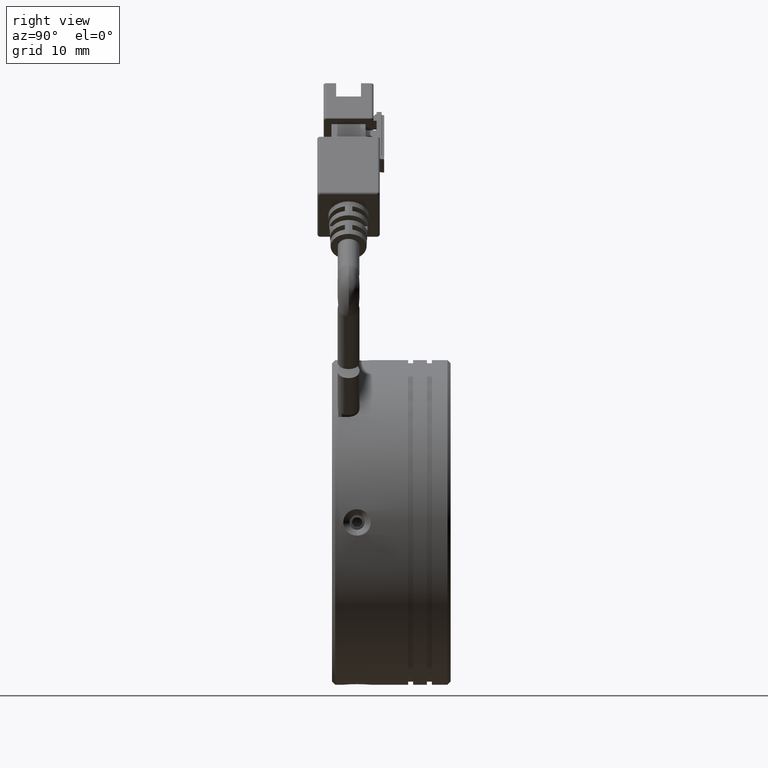
[diagram: clean part render]
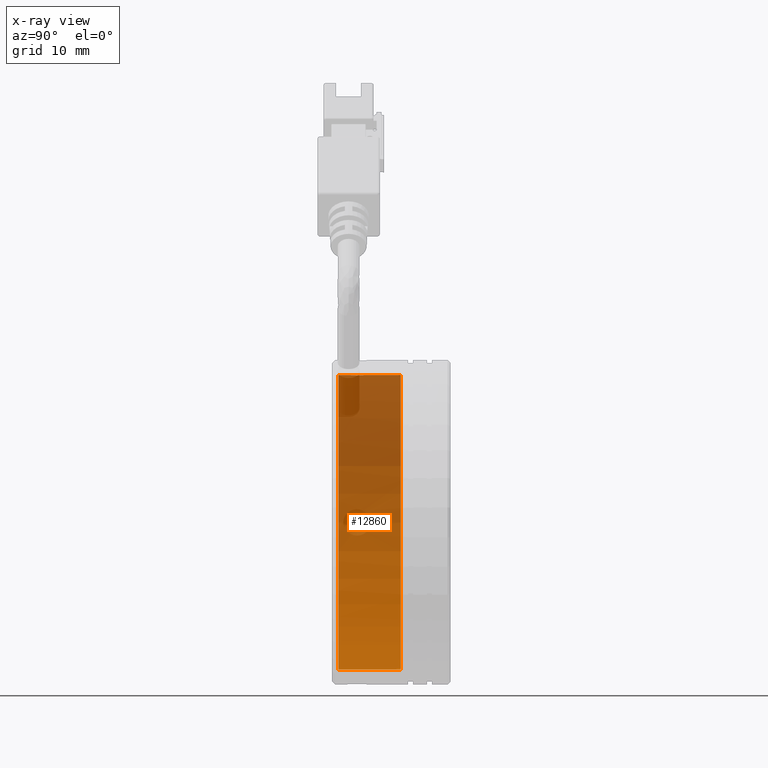
[diagram: x-ray — body ghosted, one internal face saturated and labeled with its STEP entity id]
A machine part, right view, then the same camera in x-ray: the body is ghosted and one INTERNAL B-rep face — a face not visible from any outside direction — is saturated and labeled: STEP entity #12860.
In plain terms, the highlighted cylindrical surface (partial cylindrical patch) has radius 23.6 mm, axis along (-0, -1, -0).
Its self-contained STEP definition (entity closure, byte-faithful):
#134 = B_SPLINE_CURVE_WITH_KNOTS ( 'NONE', 3,
 ( #44229, #17871, #6635, #32945, #10449, #36761, #14236, #40609, #18012, #44399, #21796, #48159, #25533, #3022, #29334, #6797, #33119, #10625 ),
 .UNSPECIFIED., .F., .F.,
 ( 4, 2, 2, 2, 2, 2, 2, 2, 4 ),
 ( 0.003751566785594989700, 0.004220512956037755100, 0.004689459126480519600, 0.005158405296923285000, 0.005627351467366049600, 0.006096297637808815000, 0.006565243808251580400, 0.007034189978694345800, 0.007503136149137110300 ),
 .UNSPECIFIED. ) ;
#205 = CARTESIAN_POINT ( 'NONE',  ( -2.043236476745188500, -2.019923829761832000, -23.56947178024998400 ) ) ;
#226 = FACE_BOUND ( 'NONE', #2645, .T. ) ;
#248 = ORIENTED_EDGE ( 'NONE', *, *, #10613, .F. ) ;
#305 = CARTESIAN_POINT ( 'NONE',  ( -0.8432364767453736100, 4.980076170238170600, 23.59999999999999800 ) ) ;
#412 = CARTESIAN_POINT ( 'NONE',  ( -1.802654267484141300, -2.757483976093340500, -23.58074984862322100 ) ) ;
#481 = CARTESIAN_POINT ( 'NONE',  ( -0.8432364767453765000, -21.81214605198405500, 0.0000000000000000000 ) ) ;
#1692 = CARTESIAN_POINT ( 'NONE',  ( -1.580796743012846700, -1.060506129409402500, -23.58873180317176800 ) ) ;
#1912 = CARTESIAN_POINT ( 'NONE',  ( -1.581474895547319700, -2.978819811423958800, 23.58871022242495400 ) ) ;
#2296 = VERTEX_POINT ( 'NONE', #10962 ) ;
#2645 = EDGE_LOOP ( 'NONE', ( #9018, #28106 ) ) ;
#3022 = CARTESIAN_POINT ( 'NONE',  ( -24.42396984322875400, -2.757145182925909000, 0.9599956775297957500 ) ) ;
#3211 = CARTESIAN_POINT ( 'NONE',  ( -24.44160815473927800, -0.8508460649370627200, -0.3130052400596656800 ) ) ;
#4217 = CARTESIAN_POINT ( 'NONE',  ( -1.447747979166769600, -3.068240703766708300, -23.59269773816366100 ) ) ;
#5164 = VERTEX_POINT ( 'NONE', #305 ) ;
#5406 = B_SPLINE_CURVE_WITH_KNOTS ( 'NONE', 3,
 ( #6664, #48190, #36949, #14422, #40815, #18193, #44577, #21982, #48354, #25715, #3211, #29531, #6993, #33306, #10811, #37126, #14577, #40972 ),
 .UNSPECIFIED., .F., .F.,
 ( 4, 2, 2, 2, 2, 2, 2, 2, 4 ),
 ( 0.0000000000000000000, 0.0004689458481993737100, 0.0009378916963987474200, 0.001406837544598121100, 0.001875783392797494800, 0.002344729240996868600, 0.002813675089196242300, 0.003282620937395616000, 0.003751566785594989700 ),
 .UNSPECIFIED. ) ;
#5474 = CARTESIAN_POINT ( 'NONE',  ( -1.891553398895245100, -1.415412422757610400, -23.57678156965979000 ) ) ;
#5544 = CARTESIAN_POINT ( 'NONE',  ( -24.41270825699535900, -2.019923829761832000, 1.199999999999915400 ) ) ;
#5681 = CARTESIAN_POINT ( 'NONE',  ( -1.159215122928757300, -3.188067622297440900, 23.59832575027449400 ) ) ;
#5729 = B_SPLINE_CURVE_WITH_KNOTS ( 'NONE', 3,
 ( #43076, #20456, #46838, #24197, #1692, #27973, #5474, #31792, #9253, #35583 ),
 .UNSPECIFIED., .F., .F.,
 ( 4, 2, 2, 2, 4 ),
 ( 0.001874892602522634000, 0.002343616699044423200, 0.002812340795566212300, 0.003281064892088001300, 0.003749788988609790400 ),
 .UNSPECIFIED. ) ;
#5946 = VERTEX_POINT ( 'NONE', #45869 ) ;
#6635 = CARTESIAN_POINT ( 'NONE',  ( -24.41435423061420100, -2.334085950753630900, -1.168778408369411000 ) ) ;
#6664 = CARTESIAN_POINT ( 'NONE',  ( -24.41270825699535900, -2.019923829761832000, 1.199999999999915400 ) ) ;
#6797 = CARTESIAN_POINT ( 'NONE',  ( -24.41435779037914600, -2.334381946304344300, 1.168710811287322100 ) ) ;
#6993 = CARTESIAN_POINT ( 'NONE',  ( -24.43202870784420000, -1.058868085110809700, -0.7358388954863058800 ) ) ;
#7091 = EDGE_CURVE ( 'NONE', #25799, #21191, #16123, .T. ) ;
#7985 = CARTESIAN_POINT ( 'NONE',  ( -1.001730018525380600, -3.219923829761801100, -23.60000000000000500 ) ) ;
#8094 = CARTESIAN_POINT ( 'NONE',  ( -0.8432364767453765000, -21.81214605198405500, -23.59999999999999800 ) ) ;
#8322 = VECTOR ( 'NONE', #24405, 1000.000000000000000 ) ;
#9018 = ORIENTED_EDGE ( 'NONE', *, *, #13807, .T. ) ;
#9253 = CARTESIAN_POINT ( 'NONE',  ( -2.043236476745188900, -1.861431566627940000, -23.56947178024998400 ) ) ;
#9480 = CARTESIAN_POINT ( 'NONE',  ( -0.8432364767453736100, -3.219923829761827300, 23.59999999999999800 ) ) ;
#10129 = VERTEX_POINT ( 'NONE', #205 ) ;
#10449 = CARTESIAN_POINT ( 'NONE',  ( -24.42399586663525200, -2.757790312193932900, -0.9591937952086525600 ) ) ;
#10613 = EDGE_CURVE ( 'NONE', #42369, #10129, #5729, .T. ) ;
#10625 = CARTESIAN_POINT ( 'NONE',  ( -24.41270825699535900, -2.019923829761832000, 1.199999999999915400 ) ) ;
#10779 = CARTESIAN_POINT ( 'NONE',  ( -0.8432364767453765000, 4.980076170238170600, 0.0000000000000000000 ) ) ;
#10811 = CARTESIAN_POINT ( 'NONE',  ( -24.42002881385662900, -1.414728958428948900, -1.048097340513789700 ) ) ;
#10962 = CARTESIAN_POINT ( 'NONE',  ( -0.8432364767453736100, -5.019923829761831200, 23.59999999999999800 ) ) ;
#11650 = CARTESIAN_POINT ( 'NONE',  ( -1.447748026053437000, -0.9714562966535530400, 23.59270377888736500 ) ) ;
#11769 = CARTESIAN_POINT ( 'NONE',  ( -0.8432364767453765000, -5.019923829761831200, -23.59999999999999800 ) ) ;
#12237 = EDGE_CURVE ( 'NONE', #21191, #2296, #31145, .T. ) ;
#12315 = ORIENTED_EDGE ( 'NONE', *, *, #7091, .T. ) ;
#12387 = CARTESIAN_POINT ( 'NONE',  ( -0.8432364767453765000, -5.019923829761831200, 0.0000000000000000000 ) ) ;
#12860 = ADVANCED_FACE ( 'NONE', ( #226, #29063 ), #15515, .F. ) ;
#13427 = VERTEX_POINT ( 'NONE', #38614 ) ;
#13807 = EDGE_CURVE ( 'NONE', #37938, #5946, #5406, .T. ) ;
#14236 = CARTESIAN_POINT ( 'NONE',  ( -24.43594803322538700, -3.068548680799536100, -0.6039962606320449200 ) ) ;
#14245 = B_SPLINE_CURVE_WITH_KNOTS ( 'NONE', 3,
 ( #30344, #26562, #34150, #11650, #37954, #15403, #41788, #19181, #45582, #22957 ),
 .UNSPECIFIED., .F., .F.,
 ( 4, 2, 2, 2, 4 ),
 ( -5.421010862427522200E-020, 0.0004687231583219020200, 0.0009374463166438040400, 0.001406169474965706200, 0.001874892633287608300 ),
 .UNSPECIFIED. ) ;
#14422 = CARTESIAN_POINT ( 'NONE',  ( -24.42001837946170200, -1.415150682401247600, 1.048327356491190800 ) ) ;
#14530 = DIRECTION ( 'NONE',  ( 0.0000000000000000000, 0.0000000000000000000, -1.000000000000000000 ) ) ;
#14577 = CARTESIAN_POINT ( 'NONE',  ( -24.41270825699535900, -1.861356051969755600, -1.200000000000004200 ) ) ;
#15403 = CARTESIAN_POINT ( 'NONE',  ( -1.802132564627843200, -1.281685546569973500, 23.58077143608722500 ) ) ;
#15420 = CARTESIAN_POINT ( 'NONE',  ( -2.043236476745188900, -2.178416414254122900, -23.56947178024998000 ) ) ;
#15515 = CYLINDRICAL_SURFACE ( 'NONE', #15790, 23.59999999999999800 ) ;
#15665 = DIRECTION ( 'NONE',  ( -0.0000000000000000000, -1.000000000000000000, -0.0000000000000000000 ) ) ;
#15790 = AXIS2_PLACEMENT_3D ( 'NONE', #481, #26782, #42041 ) ;
#15820 = CIRCLE ( 'NONE', #34843, 23.59999999999999800 ) ;
#16123 = B_SPLINE_CURVE_WITH_KNOTS ( 'NONE', 3,
 ( #39473, #43285, #20673, #47060, #24402, #1912, #28198, #5681, #32001, #9480 ),
 .UNSPECIFIED., .F., .F.,
 ( 4, 2, 2, 2, 4 ),
 ( 0.001874892633287608300, 0.002343616741991071200, 0.002812340850694533900, 0.003281064959397996600, 0.003749789068101459300 ),
 .UNSPECIFIED. ) ;
#16153 = DIRECTION ( 'NONE',  ( 0.0000000000000000000, 0.0000000000000000000, -1.000000000000000000 ) ) ;
#17004 = ORIENTED_EDGE ( 'NONE', *, *, #30586, .F. ) ;
#17152 = ORIENTED_EDGE ( 'NONE', *, *, #38314, .T. ) ;
#17871 = CARTESIAN_POINT ( 'NONE',  ( -24.41270825699535200, -2.178491716515050100, -1.200000000000157400 ) ) ;
#17935 = EDGE_CURVE ( 'NONE', #5946, #37938, #134, .T. ) ;
#18012 = CARTESIAN_POINT ( 'NONE',  ( -24.44323101557521100, -3.219816426723565200, -0.1573503971682221900 ) ) ;
#18193 = CARTESIAN_POINT ( 'NONE',  ( -24.43195985023421500, -1.060703347810118700, 0.7378317895479573600 ) ) ;
#19181 = CARTESIAN_POINT ( 'NONE',  ( -2.011380267493263900, -1.703945199785779300, 23.57114841574021800 ) ) ;
#19864 = EDGE_CURVE ( 'NONE', #2296, #23563, #37928, .T. ) ;
#20456 = CARTESIAN_POINT ( 'NONE',  ( -1.001729055964604800, -0.8199238297618634000, -23.59999999999999100 ) ) ;
#20673 = CARTESIAN_POINT ( 'NONE',  ( -2.012046225754328800, -2.333933601142113000, 23.57111606049467400 ) ) ;
#21139 = CARTESIAN_POINT ( 'NONE',  ( -0.8432364767453736100, -21.81214605198405500, 23.59999999999999800 ) ) ;
#21191 = VERTEX_POINT ( 'NONE', #22831 ) ;
#21422 = EDGE_CURVE ( 'NONE', #33474, #42369, #21921, .T. ) ;
#21796 = CARTESIAN_POINT ( 'NONE',  ( -24.44160815473928500, -3.189001594586605000, 0.3130052400594893800 ) ) ;
#21921 = LINE ( 'NONE', #43287, #8322 ) ;
#21982 = CARTESIAN_POINT ( 'NONE',  ( -24.44157246092626700, -0.8515759734985368600, 0.3152599686546836400 ) ) ;
#22339 = B_SPLINE_CURVE_WITH_KNOTS ( 'NONE', 3,
 ( #34163, #15420, #45601, #22971, #412, #26722, #4217, #30526, #7985, #34319 ),
 .UNSPECIFIED., .F., .F.,
 ( 4, 2, 2, 2, 4 ),
 ( 0.003749788988609790400, 0.004218514035515038400, 0.004687239082420286900, 0.005155964129325536300, 0.005624689176230784700 ),
 .UNSPECIFIED. ) ;
#22831 = CARTESIAN_POINT ( 'NONE',  ( -0.8432364767453736100, -3.219923829761827300, 23.59999999999999800 ) ) ;
#22957 = CARTESIAN_POINT ( 'NONE',  ( -2.043236476745371900, -2.019923829761832000, 23.56947178024997300 ) ) ;
#22971 = CARTESIAN_POINT ( 'NONE',  ( -1.891704058667388600, -2.624435281728529000, -23.57677552797129600 ) ) ;
#23463 = VERTEX_POINT ( 'NONE', #33638 ) ;
#23563 = VERTEX_POINT ( 'NONE', #11769 ) ;
#24197 = CARTESIAN_POINT ( 'NONE',  ( -1.447748026053364200, -0.9714562966536196600, -23.59270377888737300 ) ) ;
#24254 = AXIS2_PLACEMENT_3D ( 'NONE', #12387, #38702, #16153 ) ;
#24402 = CARTESIAN_POINT ( 'NONE',  ( -1.802654267484277400, -2.757483976093404900, 23.58074984862322400 ) ) ;
#24405 = DIRECTION ( 'NONE',  ( -0.0000000000000000000, -1.000000000000000000, -0.0000000000000000000 ) ) ;
#24735 = DIRECTION ( 'NONE',  ( -0.0000000000000000000, -1.000000000000000000, -0.0000000000000000000 ) ) ;
#25533 = CARTESIAN_POINT ( 'NONE',  ( -24.43202870784421100, -2.980979574412863500, 0.7358388954861324600 ) ) ;
#25715 = CARTESIAN_POINT ( 'NONE',  ( -24.44324190933849600, -0.8198169887388664400, -0.1557079376989027000 ) ) ;
#25799 = VERTEX_POINT ( 'NONE', #32809 ) ;
#26257 = ORIENTED_EDGE ( 'NONE', *, *, #19864, .T. ) ;
#26562 = CARTESIAN_POINT ( 'NONE',  ( -1.001729055964617000, -0.8199238297618355300, 23.59999999999999800 ) ) ;
#26722 = CARTESIAN_POINT ( 'NONE',  ( -1.581474895547215800, -2.978819811423894400, -23.58871022242496100 ) ) ;
#26782 = DIRECTION ( 'NONE',  ( -0.0000000000000000000, -1.000000000000000000, -0.0000000000000000000 ) ) ;
#27973 = CARTESIAN_POINT ( 'NONE',  ( -1.802132564627709500, -1.281685546570041200, -23.58077143608723200 ) ) ;
#28106 = ORIENTED_EDGE ( 'NONE', *, *, #17935, .T. ) ;
#28198 = CARTESIAN_POINT ( 'NONE',  ( -1.447747979166847300, -3.068240703766772700, 23.59269773816365400 ) ) ;
#28486 = ORIENTED_EDGE ( 'NONE', *, *, #42726, .F. ) ;
#29063 = FACE_OUTER_BOUND ( 'NONE', #41401, .T. ) ;
#29334 = CARTESIAN_POINT ( 'NONE',  ( -24.42002881385663200, -2.625118701094709000, 1.048097340513627100 ) ) ;
#29531 = CARTESIAN_POINT ( 'NONE',  ( -24.43596405977474000, -0.9709282270553423200, -0.6035920195090254100 ) ) ;
#30344 = CARTESIAN_POINT ( 'NONE',  ( -0.8432364767453736100, -0.8199238297618366400, 23.59999999999999800 ) ) ;
#30526 = CARTESIAN_POINT ( 'NONE',  ( -1.159215122928722200, -3.188067622297395600, -23.59832575027449400 ) ) ;
#30586 = EDGE_CURVE ( 'NONE', #5164, #33474, #15820, .T. ) ;
#30790 = VECTOR ( 'NONE', #15665, 1000.000000000000000 ) ;
#31145 = LINE ( 'NONE', #21139, #34714 ) ;
#31642 = CARTESIAN_POINT ( 'NONE',  ( -0.8432364767453765000, -0.8199238297618384200, -23.59999999999999800 ) ) ;
#31792 = CARTESIAN_POINT ( 'NONE',  ( -2.011380267493088500, -1.703945199785817000, -23.57114841574022500 ) ) ;
#32001 = CARTESIAN_POINT ( 'NONE',  ( -1.001728736124516800, -3.219923829761829100, 23.59999999999999800 ) ) ;
#32497 = DIRECTION ( 'NONE',  ( -0.0000000000000000000, -1.000000000000000000, -0.0000000000000000000 ) ) ;
#32809 = CARTESIAN_POINT ( 'NONE',  ( -2.043236476745371900, -2.019923829761832000, 23.56947178024997300 ) ) ;
#32945 = CARTESIAN_POINT ( 'NONE',  ( -24.42001837946170900, -2.624696977122403100, -1.048327356491362000 ) ) ;
#33119 = CARTESIAN_POINT ( 'NONE',  ( -24.41270825699535900, -2.178491825478006100, 1.199999999999915400 ) ) ;
#33189 = EDGE_CURVE ( 'NONE', #5164, #23463, #47129, .T. ) ;
#33306 = CARTESIAN_POINT ( 'NONE',  ( -24.42396984322875400, -1.282702476597746400, -0.9599956775299515200 ) ) ;
#33474 = VERTEX_POINT ( 'NONE', #41775 ) ;
#33638 = CARTESIAN_POINT ( 'NONE',  ( -0.8432364767453736100, -0.8199238297618366400, 23.59999999999999800 ) ) ;
#34150 = CARTESIAN_POINT ( 'NONE',  ( -1.157246261397724800, -0.8511140777612862300, 23.59835807141496700 ) ) ;
#34163 = CARTESIAN_POINT ( 'NONE',  ( -2.043236476745188500, -2.019923829761832000, -23.56947178024998400 ) ) ;
#34319 = CARTESIAN_POINT ( 'NONE',  ( -0.8432364767453765000, -3.219923829761825600, -23.59999999999999800 ) ) ;
#34385 = ORIENTED_EDGE ( 'NONE', *, *, #33189, .T. ) ;
#34714 = VECTOR ( 'NONE', #24735, 1000.000000000000000 ) ;
#34843 = AXIS2_PLACEMENT_3D ( 'NONE', #10779, #37072, #14530 ) ;
#35583 = CARTESIAN_POINT ( 'NONE',  ( -2.043236476745188500, -2.019923829761832000, -23.56947178024998400 ) ) ;
#36761 = CARTESIAN_POINT ( 'NONE',  ( -24.43195985023421500, -2.979144311713537900, -0.7378317895481320000 ) ) ;
#36949 = CARTESIAN_POINT ( 'NONE',  ( -24.41435423061421200, -1.705761708770036700, 1.168778408369247600 ) ) ;
#37072 = DIRECTION ( 'NONE',  ( -0.0000000000000000000, -1.000000000000000000, -0.0000000000000000000 ) ) ;
#37078 = VECTOR ( 'NONE', #32497, 1000.000000000000000 ) ;
#37126 = CARTESIAN_POINT ( 'NONE',  ( -24.41435779037913900, -1.705465713219329600, -1.168710811287491100 ) ) ;
#37928 = CIRCLE ( 'NONE', #24254, 23.59999999999999800 ) ;
#37938 = VERTEX_POINT ( 'NONE', #5544 ) ;
#37954 = CARTESIAN_POINT ( 'NONE',  ( -1.580796743012942600, -1.060506129409332100, 23.58873180317176500 ) ) ;
#38314 = EDGE_CURVE ( 'NONE', #23463, #25799, #14245, .T. ) ;
#38614 = CARTESIAN_POINT ( 'NONE',  ( -0.8432364767453765000, -3.219923829761825600, -23.59999999999999800 ) ) ;
#38702 = DIRECTION ( 'NONE',  ( -0.0000000000000000000, -1.000000000000000000, -0.0000000000000000000 ) ) ;
#39473 = CARTESIAN_POINT ( 'NONE',  ( -2.043236476745371900, -2.019923829761832000, 23.56947178024997300 ) ) ;
#40609 = CARTESIAN_POINT ( 'NONE',  ( -24.44157246092627400, -3.188271686025125000, -0.3152599686548571100 ) ) ;
#40815 = CARTESIAN_POINT ( 'NONE',  ( -24.42399586663525600, -1.282057347329728800, 0.9591937952084850200 ) ) ;
#40907 = LINE ( 'NONE', #8094, #30790 ) ;
#40972 = CARTESIAN_POINT ( 'NONE',  ( -24.41270825699534800, -2.019923829761832000, -1.200000000000080600 ) ) ;
#41401 = EDGE_LOOP ( 'NONE', ( #17004, #34385, #17152, #12315, #46741, #26257, #28486, #41782, #248, #42987 ) ) ;
#41775 = CARTESIAN_POINT ( 'NONE',  ( -0.8432364767453765000, 4.980076170238170600, -23.59999999999999800 ) ) ;
#41782 = ORIENTED_EDGE ( 'NONE', *, *, #46823, .F. ) ;
#41788 = CARTESIAN_POINT ( 'NONE',  ( -1.891553398895395900, -1.415412422757550600, 23.57678156965978600 ) ) ;
#42041 = DIRECTION ( 'NONE',  ( 0.0000000000000000000, 0.0000000000000000000, -1.000000000000000000 ) ) ;
#42369 = VERTEX_POINT ( 'NONE', #31642 ) ;
#42726 = EDGE_CURVE ( 'NONE', #13427, #23563, #40907, .T. ) ;
#42987 = ORIENTED_EDGE ( 'NONE', *, *, #21422, .F. ) ;
#43076 = CARTESIAN_POINT ( 'NONE',  ( -0.8432364767453765000, -0.8199238297618384200, -23.59999999999999800 ) ) ;
#43285 = CARTESIAN_POINT ( 'NONE',  ( -2.043236476745448300, -2.178416414253563800, 23.56947178024996600 ) ) ;
#43287 = CARTESIAN_POINT ( 'NONE',  ( -0.8432364767453765000, -21.81214605198405500, -23.59999999999999800 ) ) ;
#43804 = CARTESIAN_POINT ( 'NONE',  ( -0.8432364767453736100, -21.81214605198405500, 23.59999999999999800 ) ) ;
#44229 = CARTESIAN_POINT ( 'NONE',  ( -24.41270825699534800, -2.019923829761832000, -1.200000000000080600 ) ) ;
#44399 = CARTESIAN_POINT ( 'NONE',  ( -24.44324190933849300, -3.220030670784799200, 0.1557079376987346200 ) ) ;
#44577 = CARTESIAN_POINT ( 'NONE',  ( -24.43594803322539700, -0.9712989787241236300, 0.6039962606318725100 ) ) ;
#45582 = CARTESIAN_POINT ( 'NONE',  ( -2.043236476745295500, -1.861431566627348900, 23.56947178024997700 ) ) ;
#45601 = CARTESIAN_POINT ( 'NONE',  ( -2.012046225754153800, -2.333933601142074800, -23.57111606049467400 ) ) ;
#45869 = CARTESIAN_POINT ( 'NONE',  ( -24.41270825699534800, -2.019923829761832000, -1.200000000000080600 ) ) ;
#46741 = ORIENTED_EDGE ( 'NONE', *, *, #12237, .T. ) ;
#46823 = EDGE_CURVE ( 'NONE', #10129, #13427, #22339, .T. ) ;
#46838 = CARTESIAN_POINT ( 'NONE',  ( -1.157246261397692800, -0.8511140777613299700, -23.59835807141496400 ) ) ;
#47060 = CARTESIAN_POINT ( 'NONE',  ( -1.891704058667547300, -2.624435281728574800, 23.57677552797130000 ) ) ;
#47129 = LINE ( 'NONE', #43804, #37078 ) ;
#48159 = CARTESIAN_POINT ( 'NONE',  ( -24.43596405977474400, -3.068919432468319100, 0.6035920195088654300 ) ) ;
#48190 = CARTESIAN_POINT ( 'NONE',  ( -24.41270825699535900, -1.861355943008033500, 1.199999999999915100 ) ) ;
#48354 = CARTESIAN_POINT ( 'NONE',  ( -24.44323101557521500, -0.8200312328000981500, 0.1573503971680454400 ) ) ;